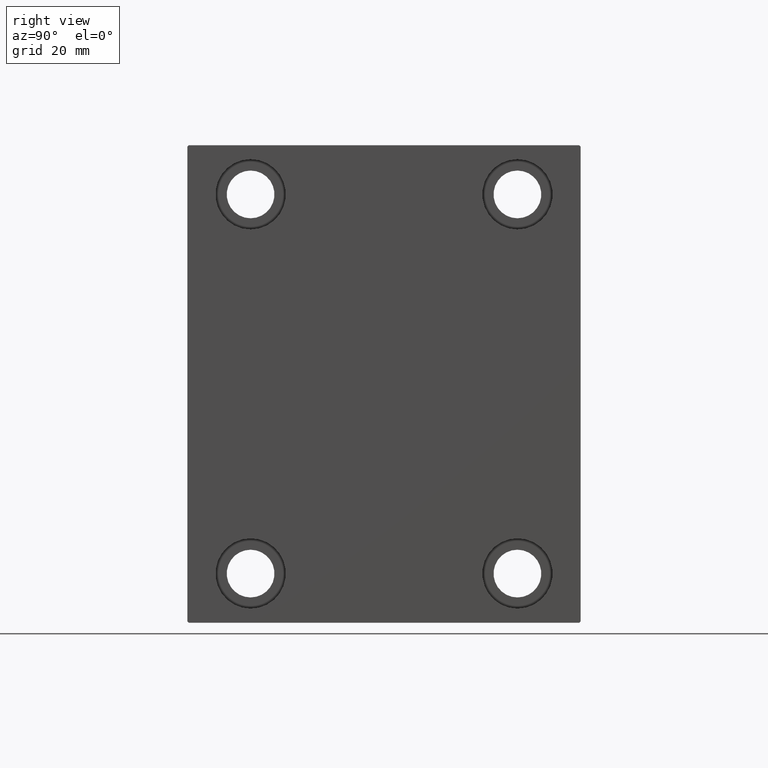
[diagram: clean part render]
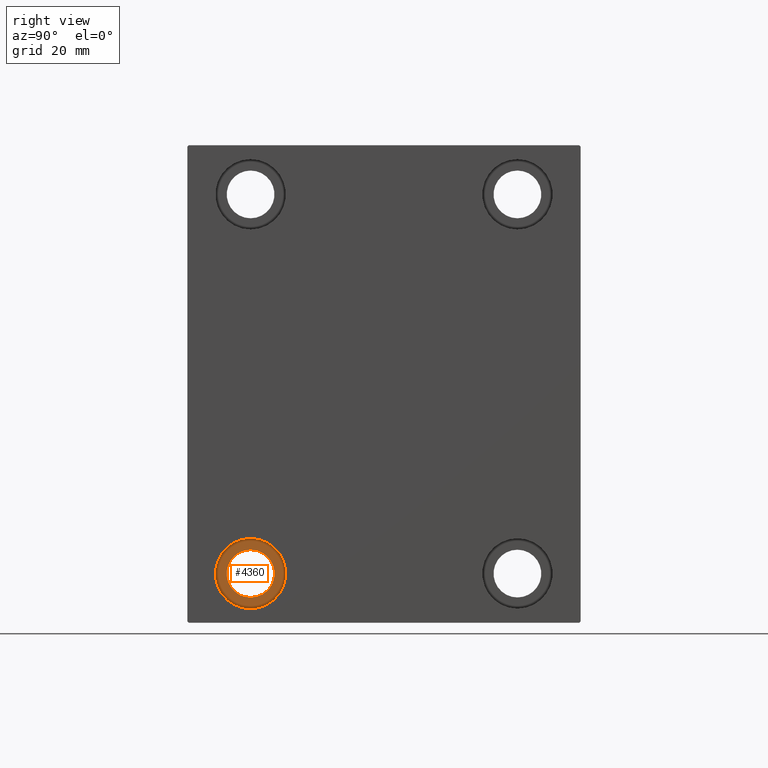
[diagram: same view with one face highlighted and labeled with its STEP entity id]
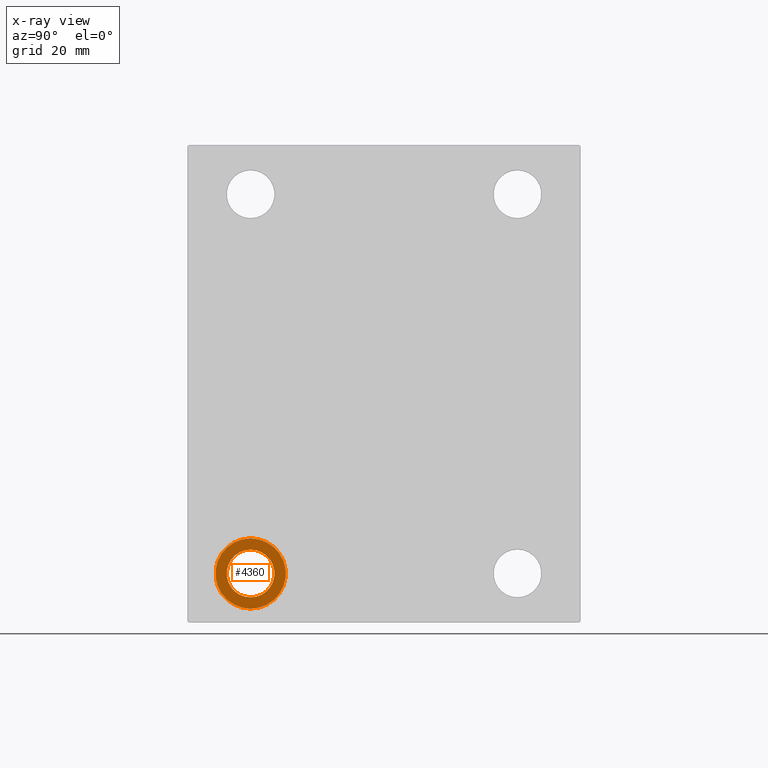
[diagram: x-ray of the same camera — body ghosted, the highlighted face saturated]
A machine part, right view. The second image highlights one B-rep face of the part: STEP entity #4360.
The next image is the same camera in x-ray: the body ghosted, the highlighted face saturated — about 0% of this face is hidden behind the body in this view.
In plain terms, the highlighted planar face has unit normal (1, 0, 0).
Its self-contained STEP definition (entity closure, byte-faithful):
#131 = CIRCLE ( 'NONE', #25016, 8.499999999999992895 ) ;
#257 = EDGE_LOOP ( 'NONE', ( #5392, #16267 ) ) ;
#2791 = DIRECTION ( 'NONE',  ( 0.000000000000000000, 0.000000000000000000, 1.000000000000000000 ) ) ;
#4360 = ADVANCED_FACE ( 'NONE', ( #32430, #17978 ), #11301, .T. ) ;
#5392 = ORIENTED_EDGE ( 'NONE', *, *, #29326, .T. ) ;
#5736 = CARTESIAN_POINT ( 'NONE',  ( 108.0000000000000000, -47.49999999999999289, -55.00000000000000711 ) ) ;
#7050 = VERTEX_POINT ( 'NONE', #5736 ) ;
#8230 = AXIS2_PLACEMENT_3D ( 'NONE', #33741, #43979, #2791 ) ;
#8402 = DIRECTION ( 'NONE',  ( 1.000000000000000000, 0.000000000000000000, -0.000000000000000000 ) ) ;
#8897 = DIRECTION ( 'NONE',  ( 0.000000000000000000, 0.000000000000000000, -1.000000000000000000 ) ) ;
#9115 = DIRECTION ( 'NONE',  ( -1.000000000000000000, -0.000000000000000000, -0.000000000000000000 ) ) ;
#9407 = ORIENTED_EDGE ( 'NONE', *, *, #42712, .F. ) ;
#9465 = VERTEX_POINT ( 'NONE', #12226 ) ;
#9985 = DIRECTION ( 'NONE',  ( -1.000000000000000000, -0.000000000000000000, -0.000000000000000000 ) ) ;
#11301 = PLANE ( 'NONE',  #24023 ) ;
#12226 = CARTESIAN_POINT ( 'NONE',  ( 108.0000000000000000, -47.49999999999999289, -59.00000000000001421 ) ) ;
#13875 = CIRCLE ( 'NONE', #8230, 12.49999999999999645 ) ;
#14789 = CARTESIAN_POINT ( 'NONE',  ( 108.0000000000000000, -47.49999999999999289, -67.50000000000000000 ) ) ;
#16267 = ORIENTED_EDGE ( 'NONE', *, *, #42212, .T. ) ;
#17978 = FACE_BOUND ( 'NONE', #257, .T. ) ;
#18631 = CARTESIAN_POINT ( 'NONE',  ( 108.0000000000000000, 0.000000000000000000, 0.000000000000000000 ) ) ;
#18828 = AXIS2_PLACEMENT_3D ( 'NONE', #40481, #9985, #33361 ) ;
#22466 = CARTESIAN_POINT ( 'NONE',  ( 108.0000000000000000, -47.49999999999999289, -67.50000000000000000 ) ) ;
#24023 = AXIS2_PLACEMENT_3D ( 'NONE', #18631, #8402, #39110 ) ;
#24150 = CARTESIAN_POINT ( 'NONE',  ( 108.0000000000000000, -47.49999999999999289, -76.00000000000000000 ) ) ;
#25016 = AXIS2_PLACEMENT_3D ( 'NONE', #22466, #9115, #8897 ) ;
#25261 = CIRCLE ( 'NONE', #38772, 12.49999999999999645 ) ;
#27718 = EDGE_LOOP ( 'NONE', ( #31309, #9407 ) ) ;
#28372 = DIRECTION ( 'NONE',  ( -1.000000000000000000, -0.000000000000000000, -0.000000000000000000 ) ) ;
#28593 = CARTESIAN_POINT ( 'NONE',  ( 108.0000000000000000, -47.49999999999999289, -80.00000000000000000 ) ) ;
#29326 = EDGE_CURVE ( 'NONE', #9465, #37158, #131, .T. ) ;
#30847 = DIRECTION ( 'NONE',  ( 0.000000000000000000, 0.000000000000000000, 1.000000000000000000 ) ) ;
#31309 = ORIENTED_EDGE ( 'NONE', *, *, #42567, .F. ) ;
#32430 = FACE_OUTER_BOUND ( 'NONE', #27718, .T. ) ;
#33361 = DIRECTION ( 'NONE',  ( 0.000000000000000000, 0.000000000000000000, -1.000000000000000000 ) ) ;
#33741 = CARTESIAN_POINT ( 'NONE',  ( 108.0000000000000000, -47.49999999999999289, -67.50000000000000000 ) ) ;
#37158 = VERTEX_POINT ( 'NONE', #24150 ) ;
#38772 = AXIS2_PLACEMENT_3D ( 'NONE', #14789, #28372, #30847 ) ;
#39110 = DIRECTION ( 'NONE',  ( 0.000000000000000000, 0.000000000000000000, 1.000000000000000000 ) ) ;
#40481 = CARTESIAN_POINT ( 'NONE',  ( 108.0000000000000000, -47.49999999999999289, -67.50000000000000000 ) ) ;
#42212 = EDGE_CURVE ( 'NONE', #37158, #9465, #42304, .T. ) ;
#42304 = CIRCLE ( 'NONE', #18828, 8.499999999999992895 ) ;
#42567 = EDGE_CURVE ( 'NONE', #42804, #7050, #13875, .T. ) ;
#42712 = EDGE_CURVE ( 'NONE', #7050, #42804, #25261, .T. ) ;
#42804 = VERTEX_POINT ( 'NONE', #28593 ) ;
#43979 = DIRECTION ( 'NONE',  ( -1.000000000000000000, -0.000000000000000000, -0.000000000000000000 ) ) ;